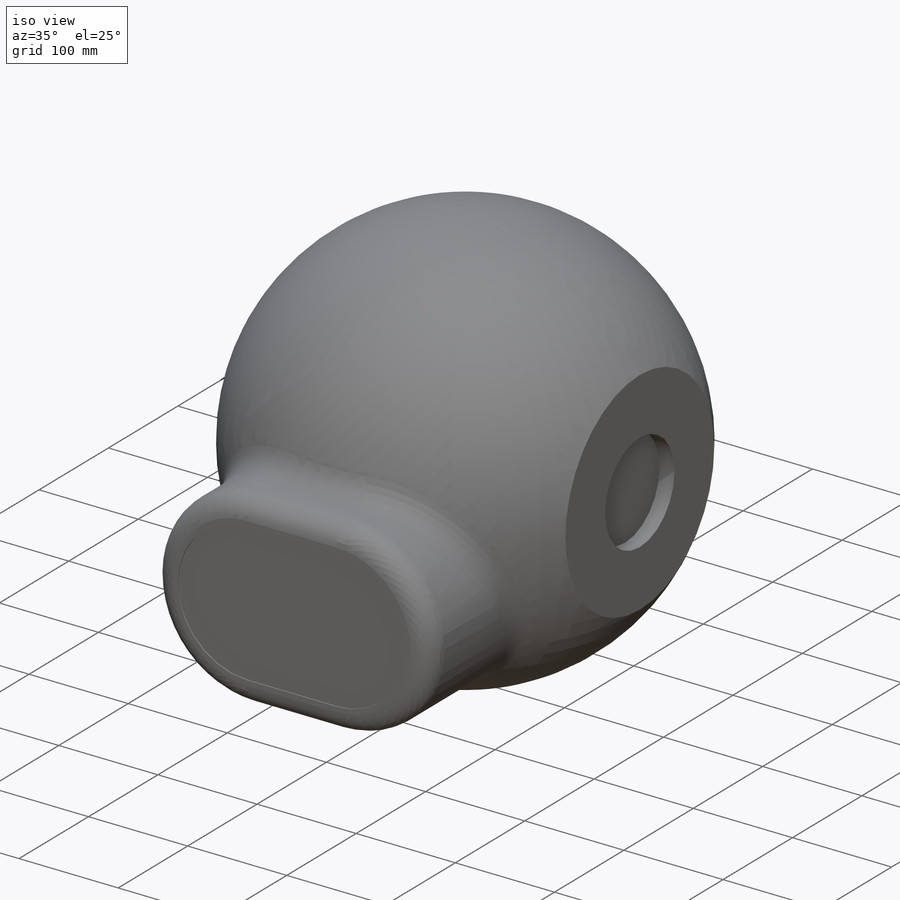
[diagram: iso view]
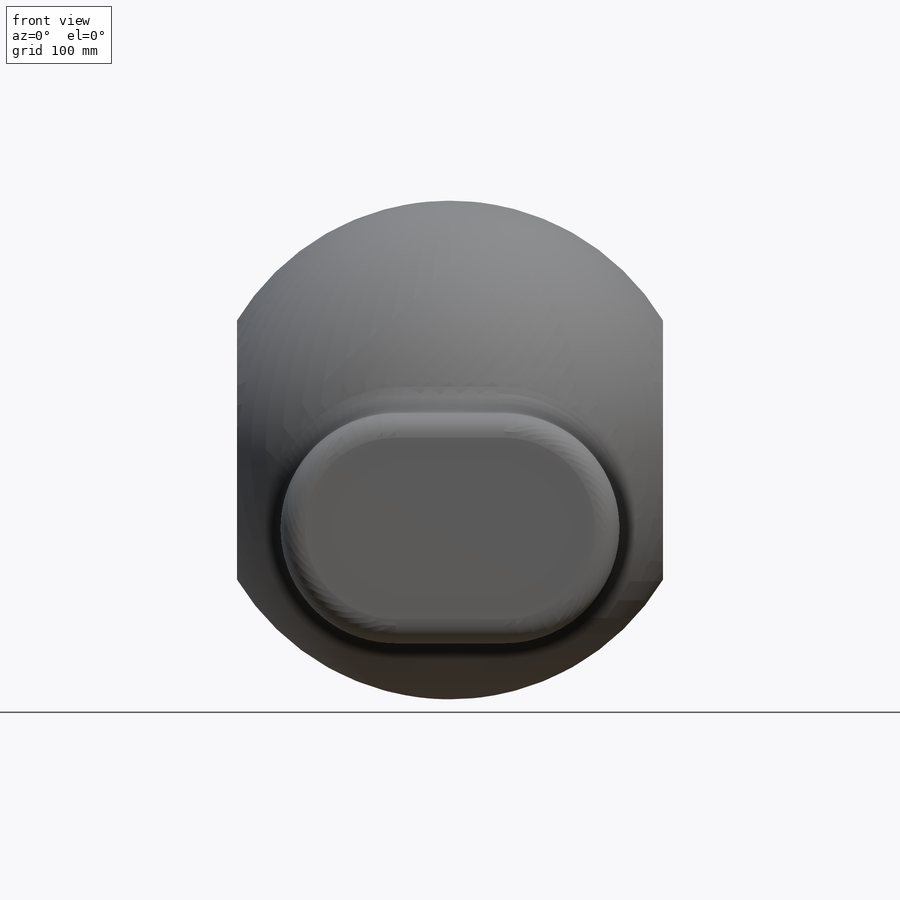
[diagram: front view]
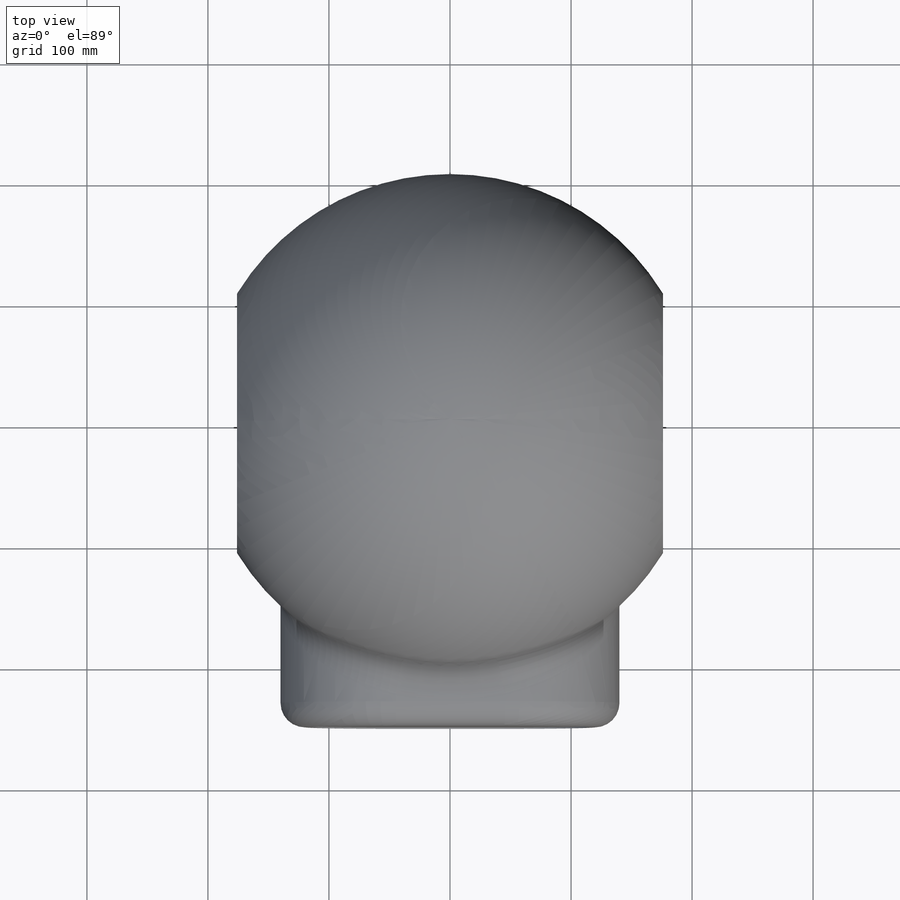
[diagram: top view]
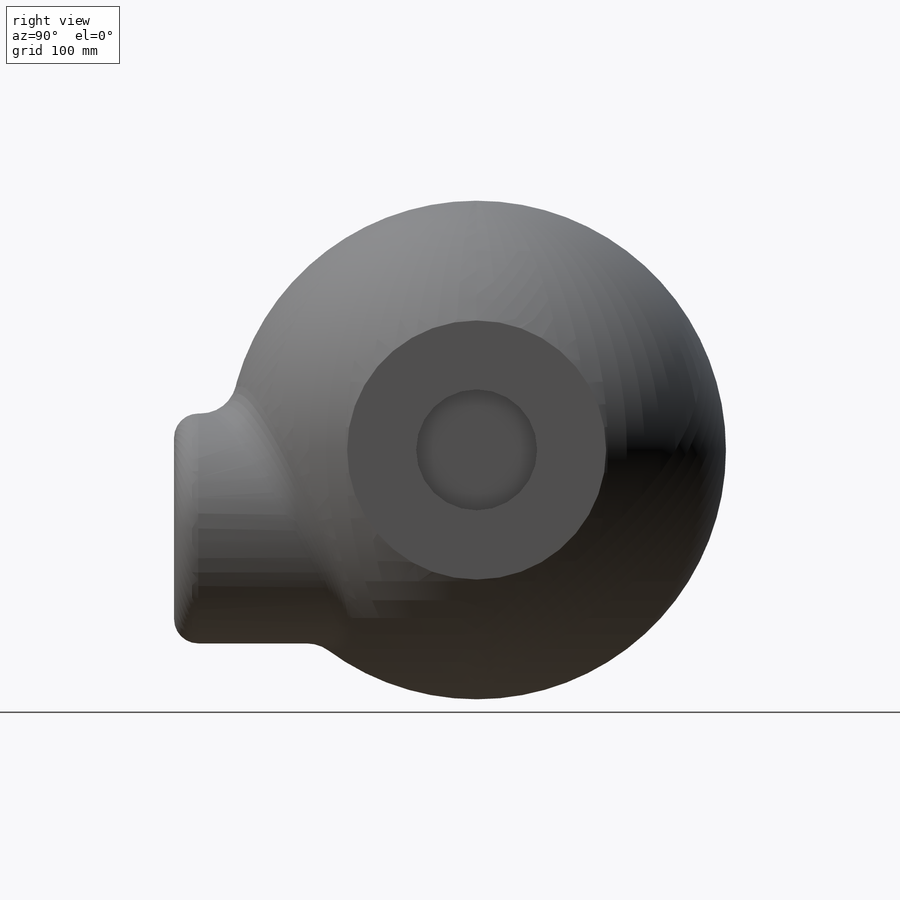
[diagram: right view]
SOLIDWORKS PART (.sldprt)
format: sldprt  version: not decoded by parser v0  size: 437,248 bytes
history: native  units: mm
features: sketch x9, cut_extrude x5, extrude x2, fillet x2, material x1, revolve x1, plane x1 (+16 scaffold rows collapsed)
feature tree (37):
  scaffold x16  (default folders/planes/origin — collapsed)
  material  "Material <not specified>"
  sketch  "Sketch1"  dims[D1=176.5mm]
  revolve  "Revolve4"  Angle=360deg
  sketch  "Sketch5"  dims[D1=30.0mm D2=30.0mm]
  cut_extrude  "Cut-Extrude1"  Depth=493mm
  plane  "Plane1"  Offset=250mm
  sketch  "Sketch6"  dims[c1.D4=60.0mm c1.D1=280.0mm c1.D2=140.0mm c1.D3=190.0mm c2.D4=160.0mm c3.D4=90.0deg c4.D4=95.0mm c4.D5=95.0mm]
  extrude  "Boss-Extrude1"  [1 undecoded]
  fillet  "Fillet1"  Radius=30mm
  fillet  "Fillet2"  Radius=20mm
  sketch  "Sketch8"  dims[D1=10.0mm]
  cut_extrude  "Cut-Extrude2"  Depth=33mm
  sketch  "Sketch9"  dims[D1=5.0mm]
  cut_extrude  "Cut-Extrude3"  Depth=5mm
  sketch  "Sketch10"  dims[D1=0.0mm]
  extrude  "Boss-Extrude4"  Depth=4mm
  sketch  "Sketch11"
  sketch  "Sketch13"  dims[D1=100.0mm]
  cut_extrude  "Cut-Extrude4"  Depth=15mm
  sketch  "Sketch14"  dims[D1=100.0mm]
  cut_extrude  "Cut-Extrude5"  Depth=15mm
decode coverage: 17 of 19 modeling features carry decoded parameters
note: 1 parameter value undecoded
note: suppression state not decoded; provenance and decode notes live in map.json
